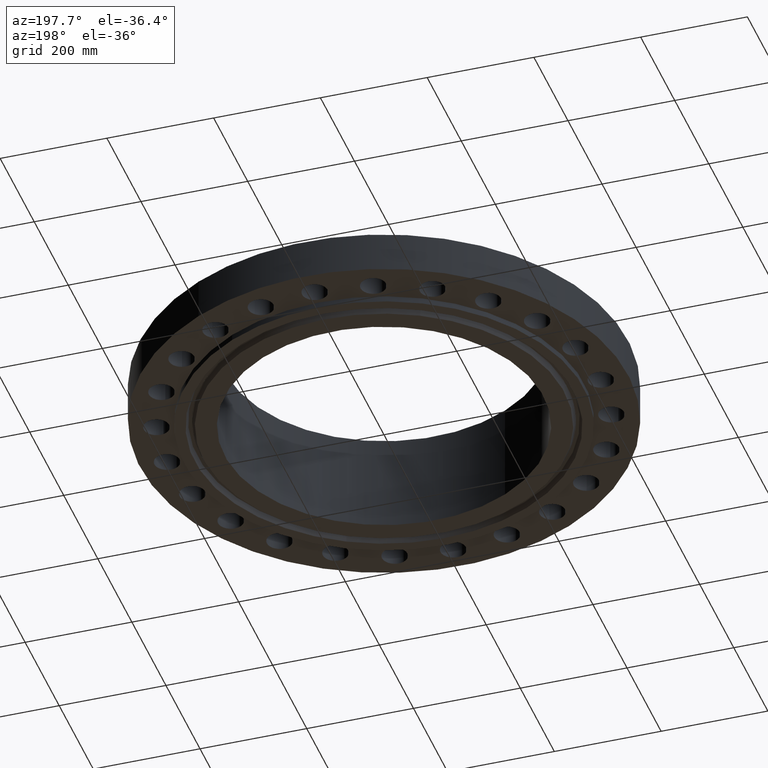
[diagram: clean part render]
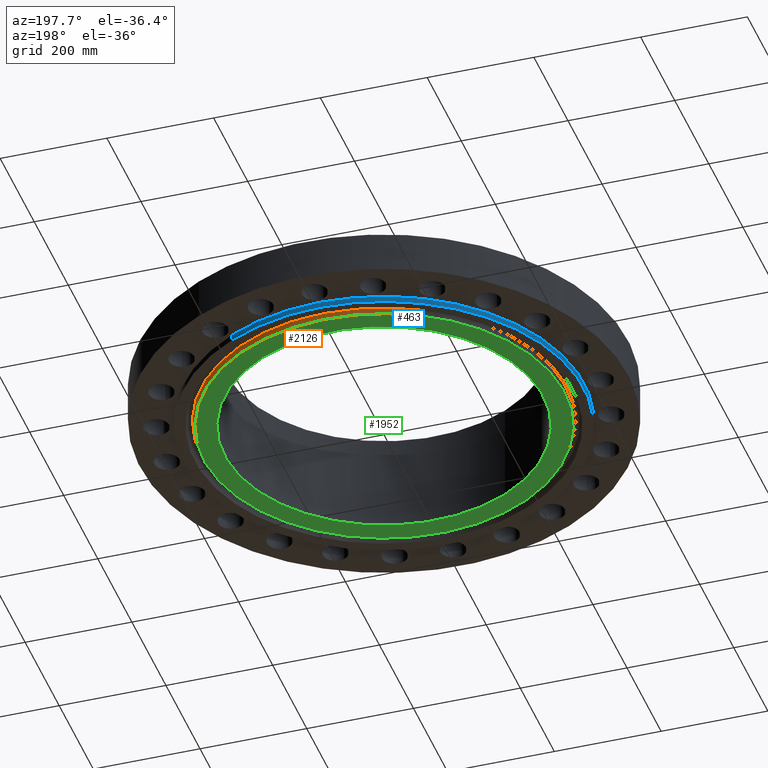
[diagram: same view with three faces highlighted in distinct colors, each labeled with its STEP entity id]
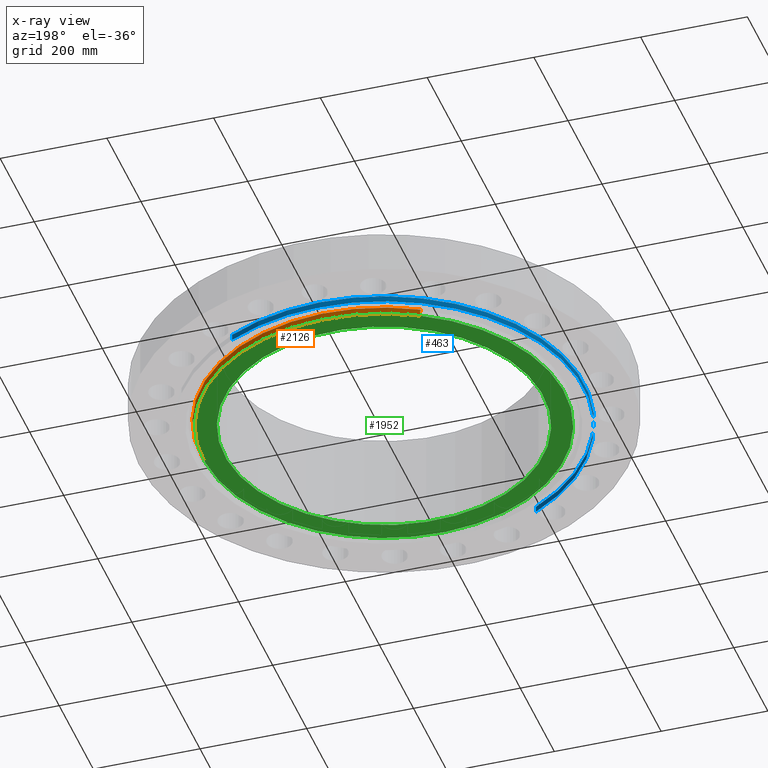
[diagram: x-ray of the same camera — body ghosted, the three highlighted faces saturated]
A machine part, auxiliary view with three faces highlighted in distinct colors.
The next image is the same camera in x-ray (body ghosted, the three faces saturated) — at least one of them is partly hidden behind the body in this view.
Their STEP definitions:

[orange] entity #2126 — the highlighted conical surface has half-angle 23 deg.
#1932=AXIS2_PLACEMENT_3D('Circle Axis2P3D',#1930,#1931,$) ;
#2076=AXIS2_PLACEMENT_3D('Circle Axis2P3D',#2074,#2075,$) ;
#2108=AXIS2_PLACEMENT_3D('Cone Axis2P3D',#2105,#2106,#2107) ;
#1930=CARTESIAN_POINT('Axis2P3D Location',(3.35689481461E-015,0.,-0.438000000002)) ;
#1934=CARTESIAN_POINT('Vertex',(-6.37492138685,11.6692153255,-0.438000000002)) ;
#1936=CARTESIAN_POINT('Vertex',(6.37492138685,-11.6692153255,-0.438000000002)) ;
#2071=CARTESIAN_POINT('Vertex',(6.45624488067,-11.8180769824,-0.0383839389053)) ;
#2074=CARTESIAN_POINT('Axis2P3D Location',(0.,0.,-0.0383839389053)) ;
#2078=CARTESIAN_POINT('Vertex',(-6.45624488067,11.8180769824,-0.0383839389053)) ;
#2105=CARTESIAN_POINT('Axis2P3D Location',(0.,0.,-0.498000000002)) ;
#2110=CARTESIAN_POINT('Line Origine',(-6.41558313376,11.743646154,-0.238191969454)) ;
#2115=CARTESIAN_POINT('Line Origine',(6.41558313376,-11.743646154,-0.238191969454)) ;
#1931=DIRECTION('Axis2P3D Direction',(0.,0.,-0.0393700787402)) ;
#2075=DIRECTION('Axis2P3D Direction',(0.,0.,0.0393700787402)) ;
#2106=DIRECTION('Axis2P3D Direction',(0.,0.,0.0393700787402)) ;
#2107=DIRECTION('Axis2P3D XDirection',(-0.0188750212049,0.0345504945626,0.)) ;
#2111=DIRECTION('Vector Direction',(-0.00737505833565,0.0134999537303,0.0362403485611)) ;
#2116=DIRECTION('Vector Direction',(0.00737505833565,-0.0134999537303,0.0362403485611)) ;
#2112=VECTOR('Line Direction',#2111,0.0393700787402) ;
#2117=VECTOR('Line Direction',#2116,0.0393700787402) ;
#2121=ORIENTED_EDGE('',*,*,#2114,.F.) ;
#2122=ORIENTED_EDGE('',*,*,#2080,.F.) ;
#2123=ORIENTED_EDGE('',*,*,#2119,.T.) ;
#2124=ORIENTED_EDGE('',*,*,#1938,.F.) ;
#2126=ADVANCED_FACE('PartBody',(#2125),#2109,.T.) ;
#1933=CIRCLE('generated circle',#1932,13.2970000001) ;
#2077=CIRCLE('generated circle',#2076,13.4666269541) ;
#2109=CONICAL_SURFACE('Cone',#2108,13.2715315111,0.401425727959) ;
#1938=EDGE_CURVE('',#1935,#1937,#1933,.T.) ;
#2080=EDGE_CURVE('',#2072,#2079,#2077,.T.) ;
#2114=EDGE_CURVE('',#2079,#1935,#2113,.F.) ;
#2119=EDGE_CURVE('',#2072,#1937,#2118,.F.) ;
#2120=EDGE_LOOP('',(#2121,#2122,#2123,#2124)) ;
#2125=FACE_OUTER_BOUND('',#2120,.T.) ;
#2113=LINE('Line',#2110,#2112) ;
#2118=LINE('Line',#2115,#2117) ;
#1935=VERTEX_POINT('',#1934) ;
#1937=VERTEX_POINT('',#1936) ;
#2072=VERTEX_POINT('',#2071) ;
#2079=VERTEX_POINT('',#2078) ;

[blue] entity #463 — the highlighted cylindrical surface (partial cylindrical patch) has radius 374.65 mm, axis along (0, 0, -1).
#427=AXIS2_PLACEMENT_3D('Cylinder Axis2P3D',#424,#425,#426) ;
#431=AXIS2_PLACEMENT_3D('Circle Axis2P3D',#429,#430,$) ;
#447=AXIS2_PLACEMENT_3D('Circle Axis2P3D',#445,#446,$) ;
#424=CARTESIAN_POINT('Axis2P3D Location',(0.,0.,3.22100000001)) ;
#429=CARTESIAN_POINT('Axis2P3D Location',(0.,0.,-0.438000000002)) ;
#433=CARTESIAN_POINT('Vertex',(-7.07152669444,-12.9443427879,-0.438000000002)) ;
#435=CARTESIAN_POINT('Vertex',(7.07152669444,12.9443427879,-0.438000000002)) ;
#438=CARTESIAN_POINT('Line Origine',(-7.07152669444,-12.9443427879,-0.219000000001)) ;
#442=CARTESIAN_POINT('Vertex',(-7.07152669444,-12.9443427879,1.67844740731E-015)) ;
#445=CARTESIAN_POINT('Axis2P3D Location',(0.,0.,1.67844740731E-015)) ;
#449=CARTESIAN_POINT('Vertex',(7.07152669444,12.9443427879,1.67844740731E-015)) ;
#452=CARTESIAN_POINT('Line Origine',(7.07152669444,12.9443427879,-0.219000000001)) ;
#425=DIRECTION('Axis2P3D Direction',(0.,0.,-0.0393700787402)) ;
#426=DIRECTION('Axis2P3D XDirection',(0.0188750212049,0.0345504945626,0.)) ;
#430=DIRECTION('Axis2P3D Direction',(0.,0.,-0.0393700787402)) ;
#439=DIRECTION('Vector Direction',(0.,0.,-0.0393700787402)) ;
#446=DIRECTION('Axis2P3D Direction',(0.,0.,-0.0393700787402)) ;
#453=DIRECTION('Vector Direction',(0.,0.,-0.0393700787402)) ;
#440=VECTOR('Line Direction',#439,0.0393700787402) ;
#454=VECTOR('Line Direction',#453,0.0393700787402) ;
#458=ORIENTED_EDGE('',*,*,#437,.F.) ;
#459=ORIENTED_EDGE('',*,*,#444,.T.) ;
#460=ORIENTED_EDGE('',*,*,#451,.T.) ;
#461=ORIENTED_EDGE('',*,*,#456,.F.) ;
#463=ADVANCED_FACE('PartBody',(#462),#428,.T.) ;
#432=CIRCLE('generated circle',#431,14.7500000001) ;
#448=CIRCLE('generated circle',#447,14.7500000001) ;
#428=CYLINDRICAL_SURFACE('generated cylinder',#427,14.7500000001) ;
#437=EDGE_CURVE('',#434,#436,#432,.T.) ;
#444=EDGE_CURVE('',#434,#443,#441,.F.) ;
#451=EDGE_CURVE('',#443,#450,#448,.T.) ;
#456=EDGE_CURVE('',#436,#450,#455,.F.) ;
#457=EDGE_LOOP('',(#458,#459,#460,#461)) ;
#462=FACE_OUTER_BOUND('',#457,.T.) ;
#441=LINE('Line',#438,#440) ;
#455=LINE('Line',#452,#454) ;
#434=VERTEX_POINT('',#433) ;
#436=VERTEX_POINT('',#435) ;
#443=VERTEX_POINT('',#442) ;
#450=VERTEX_POINT('',#449) ;

[green] entity #1952 — the highlighted planar face has unit normal (0, 0, -1).
#363=AXIS2_PLACEMENT_3D('Circle Axis2P3D',#361,#362,$) ;
#387=AXIS2_PLACEMENT_3D('Circle Axis2P3D',#385,#386,$) ;
#1905=AXIS2_PLACEMENT_3D('Plane Axis2P3D',#1902,#1903,#1904) ;
#1932=AXIS2_PLACEMENT_3D('Circle Axis2P3D',#1930,#1931,$) ;
#1941=AXIS2_PLACEMENT_3D('Circle Axis2P3D',#1939,#1940,$) ;
#358=CARTESIAN_POINT('Vertex',(5.63325007862,10.3115951023,-0.438000000002)) ;
#361=CARTESIAN_POINT('Axis2P3D Location',(0.,0.,-0.438000000002)) ;
#365=CARTESIAN_POINT('Vertex',(-5.63325007862,-10.3115951023,-0.438000000002)) ;
#385=CARTESIAN_POINT('Axis2P3D Location',(0.,0.,-0.438000000002)) ;
#1902=CARTESIAN_POINT('Axis2P3D Location',(0.,11.75,-0.438000000002)) ;
#1930=CARTESIAN_POINT('Axis2P3D Location',(3.35689481461E-015,0.,-0.438000000002)) ;
#1934=CARTESIAN_POINT('Vertex',(-6.37492138685,11.6692153255,-0.438000000002)) ;
#1936=CARTESIAN_POINT('Vertex',(6.37492138685,-11.6692153255,-0.438000000002)) ;
#1939=CARTESIAN_POINT('Axis2P3D Location',(1.1189649382E-015,0.,-0.438000000002)) ;
#362=DIRECTION('Axis2P3D Direction',(0.,0.,-0.0393700787402)) ;
#386=DIRECTION('Axis2P3D Direction',(0.,0.,-0.0393700787402)) ;
#1903=DIRECTION('Axis2P3D Direction',(0.,0.,-0.0393700787402)) ;
#1904=DIRECTION('Axis2P3D XDirection',(0.0393700787402,0.,0.)) ;
#1931=DIRECTION('Axis2P3D Direction',(0.,0.,-0.0393700787402)) ;
#1940=DIRECTION('Axis2P3D Direction',(0.,0.,-0.0393700787402)) ;
#1945=ORIENTED_EDGE('',*,*,#1938,.T.) ;
#1946=ORIENTED_EDGE('',*,*,#1943,.T.) ;
#1949=ORIENTED_EDGE('',*,*,#367,.F.) ;
#1950=ORIENTED_EDGE('',*,*,#389,.F.) ;
#1951=FACE_BOUND('',#1948,.T.) ;
#1952=ADVANCED_FACE('PartBody',(#1947,#1951),#1906,.T.) ;
#364=CIRCLE('generated circle',#363,11.75) ;
#388=CIRCLE('generated circle',#387,11.75) ;
#1933=CIRCLE('generated circle',#1932,13.2970000001) ;
#1942=CIRCLE('generated circle',#1941,13.2970000001) ;
#367=EDGE_CURVE('',#359,#366,#364,.T.) ;
#389=EDGE_CURVE('',#366,#359,#388,.T.) ;
#1938=EDGE_CURVE('',#1935,#1937,#1933,.T.) ;
#1943=EDGE_CURVE('',#1937,#1935,#1942,.T.) ;
#1944=EDGE_LOOP('',(#1945,#1946)) ;
#1948=EDGE_LOOP('',(#1949,#1950)) ;
#1947=FACE_OUTER_BOUND('',#1944,.T.) ;
#1906=PLANE('',#1905) ;
#359=VERTEX_POINT('',#358) ;
#366=VERTEX_POINT('',#365) ;
#1935=VERTEX_POINT('',#1934) ;
#1937=VERTEX_POINT('',#1936) ;